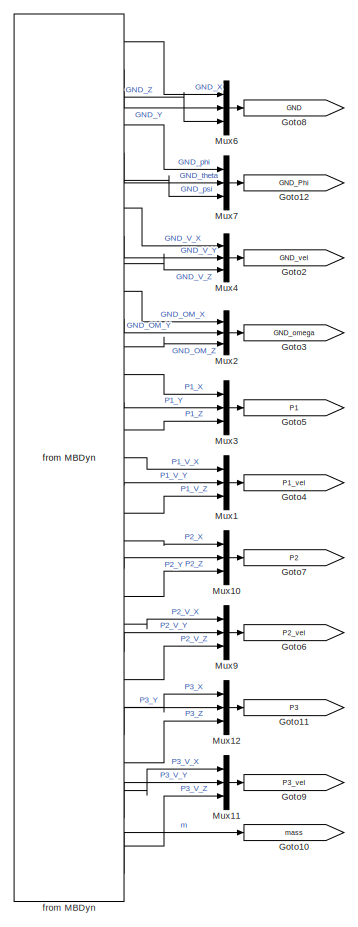
[diagram: root canvas - part 1/4, top left region]
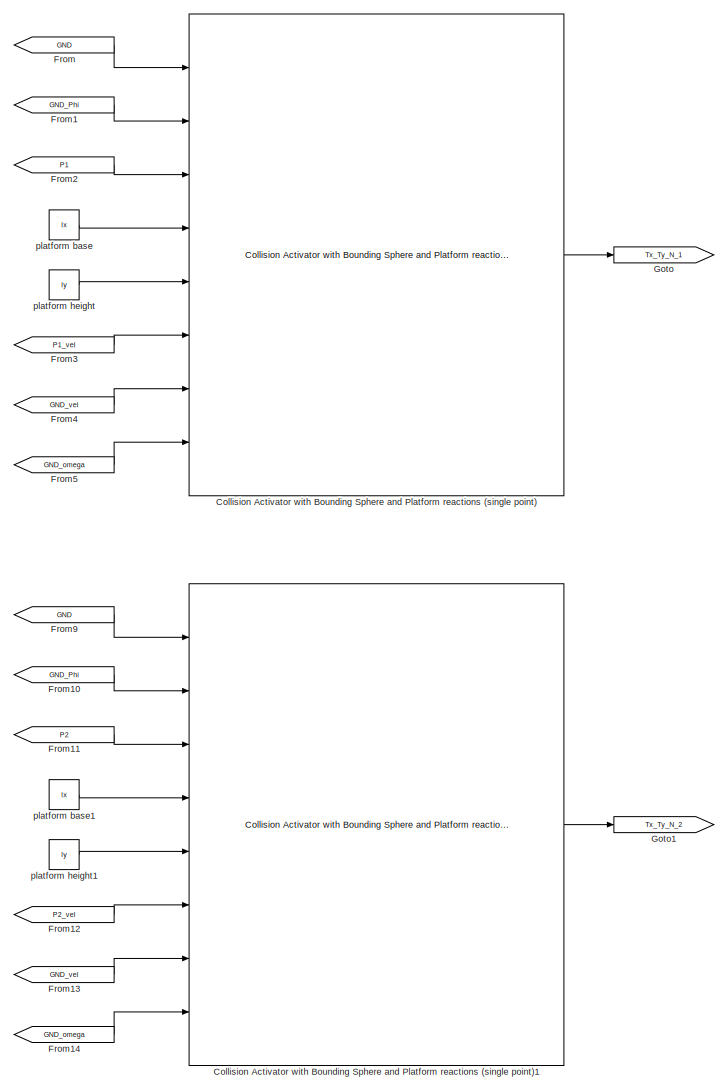
[diagram: root canvas - part 2/4, central region]
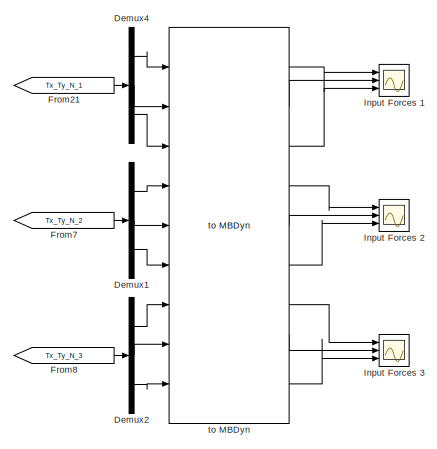
[diagram: root canvas - part 3/4, top right region]
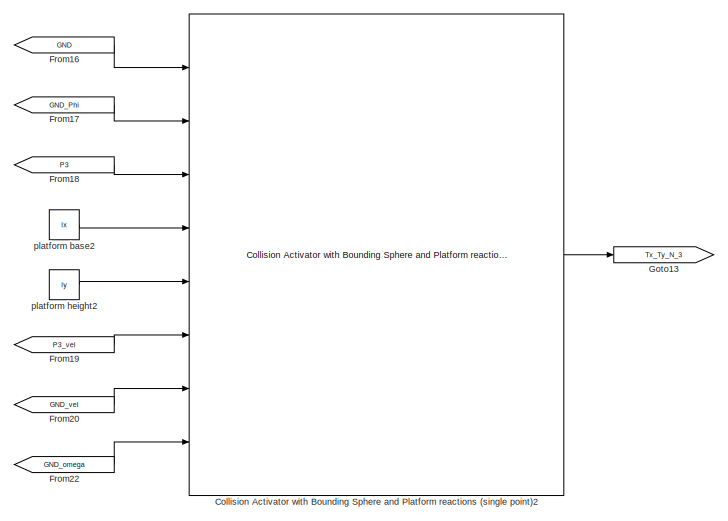
[diagram: root canvas - part 4/4, bottom center region]
MODEL slx_79b57c0c5252
KIND model
CONFIG AbsTol = auto
CONFIG EnableMultiTasking = off
CONFIG FixedStep = 1e-3
CONFIG MaxStep = auto
CONFIG MinStep = auto
CONFIG RelTol = 1e-3
CONFIG SampleTimeConstraint = Unconstrained
CONFIG Solver = FixedStepAuto
CONFIG SolverName = FixedStepAuto
CONFIG StartTime = 0.0
CONFIG StopTime = inf
BLOCK [Reference] Collision Activator with Bounding Sphere and Platform reactions (single point)  REF=MBDyn_collision_activator/Collision Activator with Bounding Sphere and Platform reactions (single point)
  Ports = [8, 1]
  SourceBlock = MBDyn_collision_activator/Collision Activator with Bounding Sphere and Platform reactions (single point)
BLOCK [Reference] Collision Activator with Bounding Sphere and Platform reactions (single point)1  REF=MBDyn_collision_activator/Collision Activator with Bounding Sphere and Platform reactions (single point)
  Ports = [8, 1]
  SourceBlock = MBDyn_collision_activator/Collision Activator with Bounding Sphere and Platform reactions (single point)
BLOCK [Reference] Collision Activator with Bounding Sphere and Platform reactions (single point)2  REF=MBDyn_collision_activator/Collision Activator with Bounding Sphere and Platform reactions (single point)
  Ports = [8, 1]
  SourceBlock = MBDyn_collision_activator/Collision Activator with Bounding Sphere and Platform reactions (single point)
BLOCK [Demux] Demux1
  DisplayOption = bar
  Outputs = 3
  Ports = [1, 3]
BLOCK [Demux] Demux2
  DisplayOption = bar
  Outputs = 3
  Ports = [1, 3]
BLOCK [Demux] Demux4
  DisplayOption = bar
  Outputs = 3
  Ports = [1, 3]
BLOCK [From] From
  GotoTag = GND
BLOCK [From] From1
  GotoTag = GND_Phi
BLOCK [From] From10
  GotoTag = GND_Phi
BLOCK [From] From11
  GotoTag = P2
BLOCK [From] From12
  GotoTag = P2_vel
BLOCK [From] From13
  GotoTag = GND_vel
BLOCK [From] From14
  GotoTag = GND_omega
BLOCK [From] From16
  GotoTag = GND
BLOCK [From] From17
  GotoTag = GND_Phi
BLOCK [From] From18
  GotoTag = P3
BLOCK [From] From19
  GotoTag = P3_vel
BLOCK [From] From2
  GotoTag = P1
BLOCK [From] From20
  GotoTag = GND_vel
BLOCK [From] From21
  GotoTag = Tx_Ty_N_1
BLOCK [From] From22
  GotoTag = GND_omega
BLOCK [From] From3
  GotoTag = P1_vel
BLOCK [From] From4
  GotoTag = GND_vel
BLOCK [From] From5
  GotoTag = GND_omega
BLOCK [From] From7
  GotoTag = Tx_Ty_N_2
BLOCK [From] From8
  GotoTag = Tx_Ty_N_3
BLOCK [From] From9
  GotoTag = GND
BLOCK [Goto] Goto
  GotoTag = Tx_Ty_N_1
BLOCK [Goto] Goto1
  GotoTag = Tx_Ty_N_2
BLOCK [Goto] Goto10
  GotoTag = mass
BLOCK [Goto] Goto11
  GotoTag = P3
BLOCK [Goto] Goto12
  GotoTag = GND_Phi
BLOCK [Goto] Goto13
  GotoTag = Tx_Ty_N_3
BLOCK [Goto] Goto2
  GotoTag = GND_vel
BLOCK [Goto] Goto3
  GotoTag = GND_omega
BLOCK [Goto] Goto4
  GotoTag = P1_vel
BLOCK [Goto] Goto5
  GotoTag = P1
BLOCK [Goto] Goto6
  GotoTag = P2_vel
BLOCK [Goto] Goto7
  GotoTag = P2
BLOCK [Goto] Goto8
  GotoTag = GND
BLOCK [Goto] Goto9
  GotoTag = P3_vel
BLOCK [Scope] Input Forces 1
  NumInputPorts = 3
  Ports = [3]
  ScopeSpecificationString = Simulink.scopes.TimeScopeBlockCfg('CurrentConfiguration', extmgr.ConfigurationSet(extmgr.Configuration('Core','General UI',true),extmgr.Configuration('Core','Source UI',true),extmgr.Configuration('Sources','WiredSimulink',true,'DataLoggingVariableName','ScopeData1'),extmgr.Configuration('Visuals','Time Domain',true,'TimeAxisLabels','All','SerializedDisplays',{struct('MinYLimReal','-7324255.26872',...<+2831ch>
BLOCK [Scope] Input Forces 2
  NumInputPorts = 3
  Ports = [3]
  ScopeSpecificationString = C++SS(StrPVP('SaveName','ScopeData1'),StrPVP('LimitDataPoints','on'),StrPVP('DataFormat','Array'),StrPVP('Decimation','1'),StrPVP('BlockParamSampleInput','off'))
BLOCK [Scope] Input Forces 3
  NumInputPorts = 3
  Ports = [3]
  ScopeSpecificationString = C++SS(StrPVP('SaveName','ScopeData1'),StrPVP('SaveName','ScopeData2'),StrPVP('LimitDataPoints','on'),StrPVP('DataFormat','Array'),StrPVP('Decimation','1'),StrPVP('BlockParamSampleInput','off'))
BLOCK [Mux] Mux1
  DisplayOption = bar
  Inputs = 3
  Ports = [3, 1]
BLOCK [Mux] Mux10
  DisplayOption = bar
  Inputs = 3
  Ports = [3, 1]
BLOCK [Mux] Mux11
  DisplayOption = bar
  Inputs = 3
  Ports = [3, 1]
BLOCK [Mux] Mux12
  DisplayOption = bar
  Inputs = 3
  Ports = [3, 1]
BLOCK [Mux] Mux2
  DisplayOption = bar
  Inputs = 3
  Ports = [3, 1]
BLOCK [Mux] Mux3
  DisplayOption = bar
  Inputs = 3
  Ports = [3, 1]
BLOCK [Mux] Mux4
  DisplayOption = bar
  Inputs = 3
  Ports = [3, 1]
BLOCK [Mux] Mux6
  DisplayOption = bar
  Inputs = 3
  Ports = [3, 1]
BLOCK [Mux] Mux7
  DisplayOption = bar
  Inputs = 3
  Ports = [3, 1]
BLOCK [Mux] Mux9
  DisplayOption = bar
  Inputs = 3
  Ports = [3, 1]
BLOCK [Reference] from MBDyn  REF=MBDynCom/from MBDyn
  Ports = [0, 31]
  Priority = 0
  SourceBlock = MBDynCom/from MBDyn
BLOCK [Constant] platform base
  Value = lx
BLOCK [Constant] platform base1
  Value = lx
BLOCK [Constant] platform base2
  Value = lx
BLOCK [Constant] platform height
  Value = ly
BLOCK [Constant] platform height1
  Value = ly
BLOCK [Constant] platform height2
  Value = ly
BLOCK [Reference] to MBDyn  REF=MBDynCom/to MBDyn
  Ports = [9, 9]
  Priority = 0
  SourceBlock = MBDynCom/to MBDyn
LINE Collision Activator with Bounding Sphere and Platform reactions (single point)1:1 -> Goto1:1
LINE Collision Activator with Bounding Sphere and Platform reactions (single point)2:1 -> Goto13:1
LINE Collision Activator with Bounding Sphere and Platform reactions (single point):1 -> Goto:1
LINE Demux1:1 -> to MBDyn:4
LINE Demux1:2 -> to MBDyn:5
LINE Demux1:3 -> to MBDyn:6
LINE Demux2:1 -> to MBDyn:7
LINE Demux2:2 -> to MBDyn:8
LINE Demux2:3 -> to MBDyn:9
LINE Demux4:1 -> to MBDyn:1
LINE Demux4:2 -> to MBDyn:2
LINE Demux4:3 -> to MBDyn:3
LINE From10:1 -> Collision Activator with Bounding Sphere and Platform reactions (single point)1:2
LINE From11:1 -> Collision Activator with Bounding Sphere and Platform reactions (single point)1:3
LINE From12:1 -> Collision Activator with Bounding Sphere and Platform reactions (single point)1:6
LINE From13:1 -> Collision Activator with Bounding Sphere and Platform reactions (single point)1:7
LINE From14:1 -> Collision Activator with Bounding Sphere and Platform reactions (single point)1:8
LINE From16:1 -> Collision Activator with Bounding Sphere and Platform reactions (single point)2:1
LINE From17:1 -> Collision Activator with Bounding Sphere and Platform reactions (single point)2:2
LINE From18:1 -> Collision Activator with Bounding Sphere and Platform reactions (single point)2:3
LINE From19:1 -> Collision Activator with Bounding Sphere and Platform reactions (single point)2:6
LINE From1:1 -> Collision Activator with Bounding Sphere and Platform reactions (single point):2
LINE From20:1 -> Collision Activator with Bounding Sphere and Platform reactions (single point)2:7
LINE From21:1 -> Demux4:1
LINE From22:1 -> Collision Activator with Bounding Sphere and Platform reactions (single point)2:8
LINE From2:1 -> Collision Activator with Bounding Sphere and Platform reactions (single point):3
LINE From3:1 -> Collision Activator with Bounding Sphere and Platform reactions (single point):6
LINE From4:1 -> Collision Activator with Bounding Sphere and Platform reactions (single point):7
LINE From5:1 -> Collision Activator with Bounding Sphere and Platform reactions (single point):8
LINE From7:1 -> Demux1:1
LINE From8:1 -> Demux2:1
LINE From9:1 -> Collision Activator with Bounding Sphere and Platform reactions (single point)1:1
LINE From:1 -> Collision Activator with Bounding Sphere and Platform reactions (single point):1
LINE Mux10:1 -> Goto7:1
LINE Mux11:1 -> Goto9:1
LINE Mux12:1 -> Goto11:1
LINE Mux1:1 -> Goto4:1
LINE Mux2:1 -> Goto3:1
LINE Mux3:1 -> Goto5:1
LINE Mux4:1 -> Goto2:1
LINE Mux6:1 -> Goto8:1
LINE Mux7:1 -> Goto12:1
LINE Mux9:1 -> Goto6:1
LINE from MBDyn:1 -> Mux6:1
LINE from MBDyn:10 -> Mux2:1
LINE from MBDyn:11 -> Mux2:2
LINE from MBDyn:12 -> Mux2:3
LINE from MBDyn:13 -> Mux3:1
LINE from MBDyn:14 -> Mux3:2
LINE from MBDyn:15 -> Mux3:3
LINE from MBDyn:16 -> Mux1:1
LINE from MBDyn:17 -> Mux1:2
LINE from MBDyn:18 -> Mux1:3
LINE from MBDyn:19 -> Mux10:1
LINE from MBDyn:2 -> Mux6:2
LINE from MBDyn:20 -> Mux10:2
LINE from MBDyn:21 -> Mux10:3
LINE from MBDyn:22 -> Mux9:1
LINE from MBDyn:23 -> Mux9:2
LINE from MBDyn:24 -> Mux9:3
LINE from MBDyn:25 -> Mux12:1
LINE from MBDyn:26 -> Mux12:2
LINE from MBDyn:27 -> Mux12:3
LINE from MBDyn:28 -> Mux11:1
LINE from MBDyn:29 -> Mux11:2
LINE from MBDyn:3 -> Mux6:3
LINE from MBDyn:30 -> Mux11:3
LINE from MBDyn:31 -> Goto10:1
LINE from MBDyn:4 -> Mux7:1
LINE from MBDyn:5 -> Mux7:2
LINE from MBDyn:6 -> Mux7:3
LINE from MBDyn:7 -> Mux4:1
LINE from MBDyn:8 -> Mux4:2
LINE from MBDyn:9 -> Mux4:3
LINE platform base1:1 -> Collision Activator with Bounding Sphere and Platform reactions (single point)1:4
LINE platform base2:1 -> Collision Activator with Bounding Sphere and Platform reactions (single point)2:4
LINE platform base:1 -> Collision Activator with Bounding Sphere and Platform reactions (single point):4
LINE platform height1:1 -> Collision Activator with Bounding Sphere and Platform reactions (single point)1:5
LINE platform height2:1 -> Collision Activator with Bounding Sphere and Platform reactions (single point)2:5
LINE platform height:1 -> Collision Activator with Bounding Sphere and Platform reactions (single point):5
LINE to MBDyn:1 -> Input Forces 1:1
LINE to MBDyn:2 -> Input Forces 1:2
LINE to MBDyn:3 -> Input Forces 1:3
LINE to MBDyn:4 -> Input Forces 2:1
LINE to MBDyn:5 -> Input Forces 2:2
LINE to MBDyn:6 -> Input Forces 2:3
LINE to MBDyn:7 -> Input Forces 3:1
LINE to MBDyn:8 -> Input Forces 3:2
LINE to MBDyn:9 -> Input Forces 3:3
